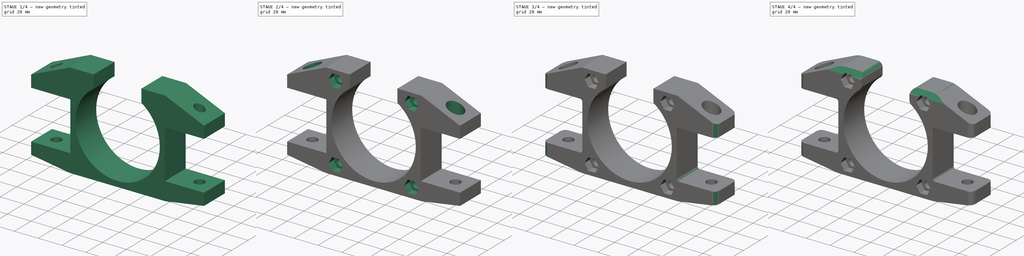
[diagram: build sequence overview — one tinted view per stage of 4, left to right]
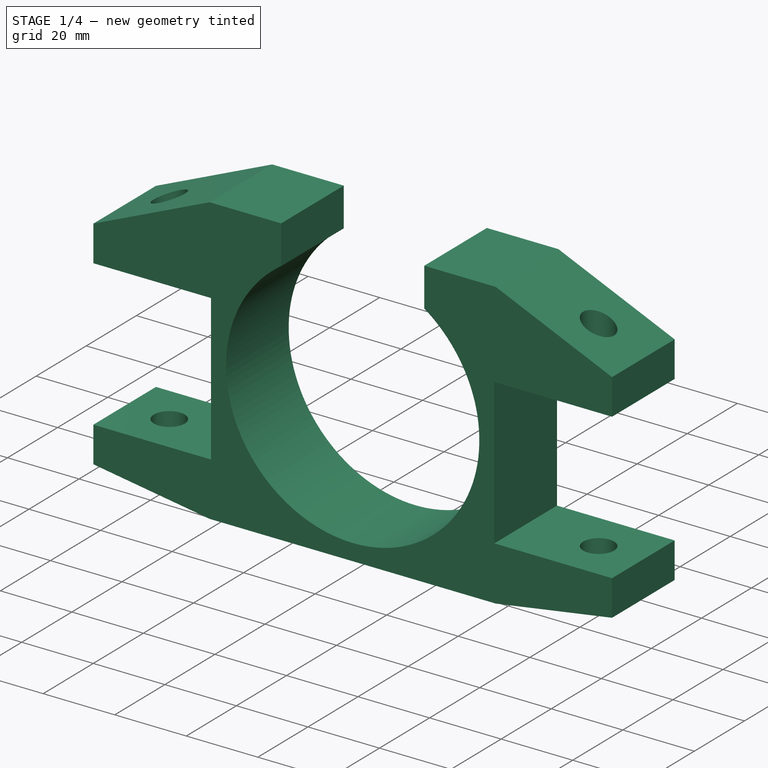
[diagram: stage 1 of 4 — iso view after this stage's code; geometry added in this stage tinted green]
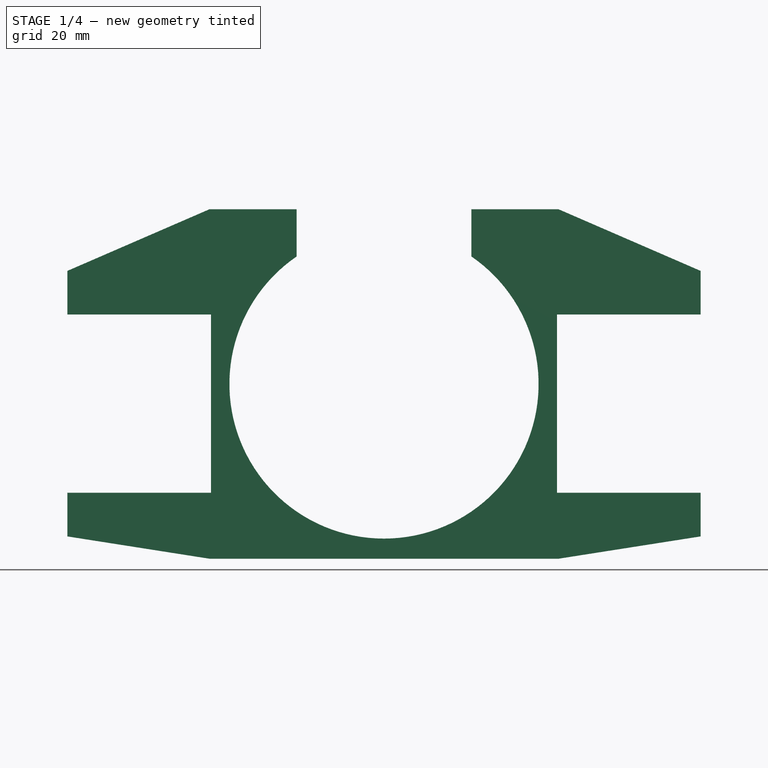
[diagram: stage 1 of 4 — front view after this stage's code; geometry added in this stage tinted green]
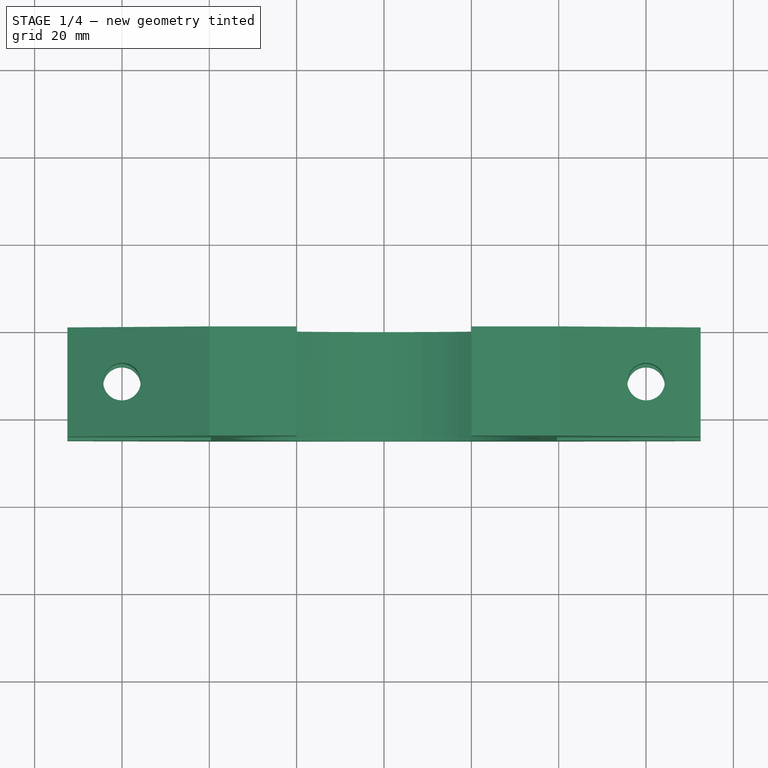
[diagram: stage 1 of 4 — top view after this stage's code; geometry added in this stage tinted green]
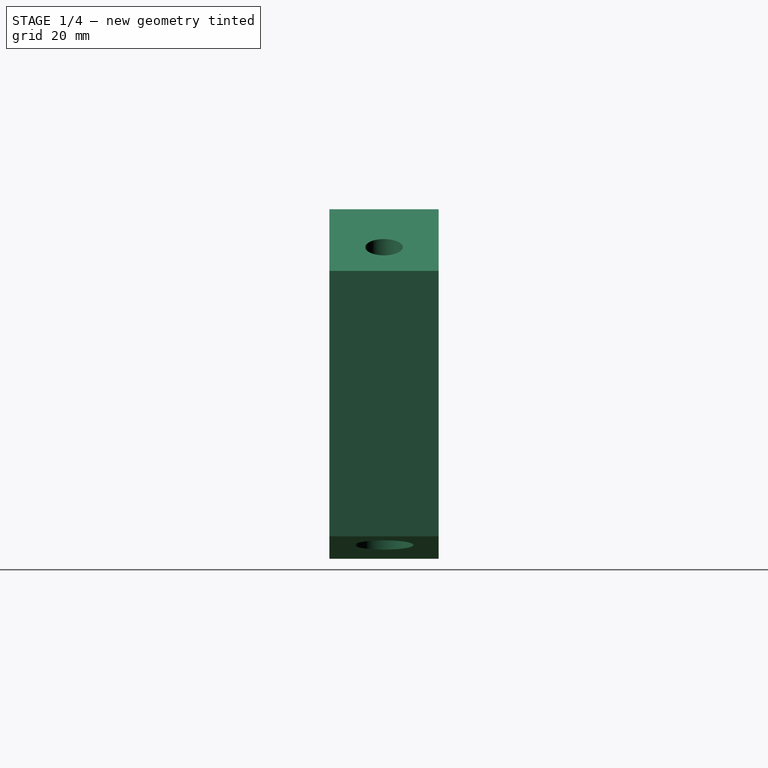
[diagram: stage 1 of 4 — right view after this stage's code; geometry added in this stage tinted green]
FCSTD DOCUMENT  (FreeCAD 1.0R39109 (Git))
Label: surge_motor_mount_side
License: All rights reserved
LicenseURL: https://en.wikipedia.org/wiki/All_rights_reserved
objects: Sketcher::SketchObject×7, PartDesign::Pocket×6, PartDesign::Fillet×4, PartDesign::Pad×1, PartDesign::Body×1
note: 48 computed .brp shape members not serialized (recipe doc carries the construction recipe); baked Part::Feature solids carry a one-line shape summary decoded from their .brp

FEATURE [Sketcher::SketchObject] Sketch
  ArcFitTolerance = 1e-06
  AttachmentSupport = -> [XZ_Plane]
  FullyConstrained = true
  MakeInternals = false
  MapMode = 5
  Placement = pos=(0,0,0) rot=(1,0,0;1.5708rad)
  sketch-geometry (48):
    g0: LineSegment [constr] StartX=-80 StartY=20 StartZ=0 EndX=-80 EndY=-20 EndZ=0
    g1: LineSegment [constr] StartX=-80 StartY=-20 StartZ=0 EndX=-40 EndY=-20 EndZ=0
    g2: LineSegment [constr] StartX=-40 StartY=-20 StartZ=0 EndX=-40 EndY=20 EndZ=0
    g3: LineSegment [constr] StartX=-40 StartY=20 StartZ=0 EndX=-80 EndY=20 EndZ=0
    g4: LineSegment [constr] StartX=40 StartY=20 StartZ=0 EndX=40 EndY=-20 EndZ=0
    g5: LineSegment [constr] StartX=40 StartY=-20 StartZ=0 EndX=80 EndY=-20 EndZ=0
    g6: LineSegment [constr] StartX=80 StartY=-20 StartZ=0 EndX=80 EndY=20 EndZ=0
    g7: LineSegment [constr] StartX=80 StartY=20 StartZ=0 EndX=40 EndY=20 EndZ=0
    g8: LineSegment [constr] StartX=-40 StartY=-20 StartZ=0 EndX=0 EndY=0 EndZ=0
    g9: LineSegment [constr] StartX=0 StartY=0 StartZ=0 EndX=40 EndY=-20 EndZ=0
    g10: LineSegment [constr] StartX=-40 StartY=44.5 StartZ=0 EndX=-40 EndY=-35.5 EndZ=0
    g11: LineSegment [constr] StartX=-40 StartY=-35.5 StartZ=0 EndX=40 EndY=-35.5 EndZ=0
    g12: LineSegment [constr] StartX=40 StartY=-35.5 StartZ=0 EndX=40 EndY=44.5 EndZ=0
    g13: LineSegment [constr] StartX=40 StartY=44.5 StartZ=0 EndX=-40 EndY=44.5 EndZ=0
    g14: ArcOfCircle [constr] CenterX=-33 CenterY=37.5 CenterZ=0 NormalX=0 NormalY=0 NormalZ=1 AngleXU=0 Radius=7 StartAngle=1.5708 EndAngle=3.14159
    g15: ArcOfCircle [constr] CenterX=33 CenterY=37.5 CenterZ=0 NormalX=0 NormalY=0 NormalZ=1 AngleXU=0 Radius=7 StartAngle=0 EndAngle=1.5708
    g16: ArcOfCircle [constr] CenterX=33 CenterY=-28.5 CenterZ=0 NormalX=0 NormalY=0 NormalZ=1 AngleXU=0 Radius=7 StartAngle=4.71239 EndAngle=6.28319
    g17: ArcOfCircle [constr] CenterX=-33 CenterY=-28.5 CenterZ=0 NormalX=0 NormalY=0 NormalZ=1 AngleXU=0 Radius=7 StartAngle=3.14159 EndAngle=4.71239
    g18: Circle [constr] CenterX=-31.75 CenterY=36.25 CenterZ=0 NormalX=0 NormalY=0 NormalZ=1 AngleXU=0 Radius=3
    g19: Circle [constr] CenterX=31.75 CenterY=36.25 CenterZ=0 NormalX=0 NormalY=0 NormalZ=1 AngleXU=0 Radius=3
    g20: Circle [constr] CenterX=31.75 CenterY=-27.25 CenterZ=0 NormalX=0 NormalY=0 NormalZ=1 AngleXU=0 Radius=3
    g21: Circle [constr] CenterX=-31.75 CenterY=-27.25 CenterZ=0 NormalX=0 NormalY=0 NormalZ=1 AngleXU=0 Radius=3
    g22: LineSegment [constr] StartX=-40 StartY=-35.5 StartZ=0 EndX=-31.75 EndY=-27.25 EndZ=0
    g23: LineSegment [constr] StartX=31.75 StartY=-27.25 StartZ=0 EndX=40 EndY=-35.5 EndZ=0
    g24: LineSegment [constr] StartX=-40 StartY=44.5 StartZ=0 EndX=40 EndY=-35.5 EndZ=0
    g25: LineSegment [constr] StartX=-40 StartY=-35.5 StartZ=0 EndX=40 EndY=44.5 EndZ=0
    g26: Circle [constr] CenterX=-1.1e-15 CenterY=4.5 CenterZ=0 NormalX=0 NormalY=0 NormalZ=1 AngleXU=0 Radius=35
    g27: LineSegment StartX=-72.5 StartY=20.4 StartZ=0 EndX=-72.5 EndY=30.4 EndZ=0
    g28: LineSegment StartX=-72.5 StartY=30.4 StartZ=0 EndX=-40 EndY=44.5 EndZ=0
    g29: LineSegment StartX=40 StartY=44.5 StartZ=0 EndX=72.5 EndY=30.4 EndZ=0
    g30: LineSegment StartX=72.5 StartY=30.4 StartZ=0 EndX=72.5 EndY=20.4 EndZ=0
    g31: LineSegment StartX=72.5 StartY=20.4 StartZ=0 EndX=39.6 EndY=20.4 EndZ=0
    g32: LineSegment StartX=39.6 StartY=20.4 StartZ=0 EndX=39.6 EndY=-20.4 EndZ=0
    g33: LineSegment StartX=39.6 StartY=-20.4 StartZ=0 EndX=72.5 EndY=-20.4 EndZ=0
    g34: LineSegment StartX=72.5 StartY=-20.4 StartZ=0 EndX=72.5 EndY=-30.4 EndZ=0
    g35: LineSegment StartX=72.5 StartY=-30.4 StartZ=0 EndX=40 EndY=-35.5 EndZ=0
    g36: LineSegment StartX=40 StartY=-35.5 StartZ=0 EndX=-40 EndY=-35.5 EndZ=0
    g37: LineSegment StartX=-40 StartY=-35.5 StartZ=0 EndX=-72.5 EndY=-30.4 EndZ=0
    g38: LineSegment StartX=-72.5 StartY=-30.4 StartZ=0 EndX=-72.5 EndY=-20.4 EndZ=0
    g39: LineSegment StartX=-72.5 StartY=-20.4 StartZ=0 EndX=-39.6 EndY=-20.4 EndZ=0
    g40: LineSegment StartX=-39.6 StartY=-20.4 StartZ=0 EndX=-39.6 EndY=20.4 EndZ=0
    g41: LineSegment StartX=-39.6 StartY=20.4 StartZ=0 EndX=-72.5 EndY=20.4 EndZ=0
    g42: Circle [constr] CenterX=-1.1e-15 CenterY=4.5 CenterZ=0 NormalX=0 NormalY=0 NormalZ=1 AngleXU=0 Radius=35.4
    g43: ArcOfCircle CenterX=-1.1e-15 CenterY=4.5 CenterZ=0 NormalX=0 NormalY=0 NormalZ=1 AngleXU=0 Radius=35.4 StartAngle=2.1712 EndAngle=7.25358
    g44: LineSegment StartX=-40 StartY=44.5 StartZ=0 EndX=-20 EndY=44.5 EndZ=0
    g45: LineSegment StartX=-20 StartY=44.5 StartZ=0 EndX=-20 EndY=33.7089 EndZ=0
    g46: LineSegment StartX=40 StartY=44.5 StartZ=0 EndX=20 EndY=44.5 EndZ=0
    g47: LineSegment StartX=20 StartY=44.5 StartZ=0 EndX=20 EndY=33.7089 EndZ=0
  constraints (132):
    c: Coincident(g0,g1)
    c: Coincident(g1,g2)
    c: Coincident(g2,g3)
    c: Coincident(g3,g0)
    c: Vertical(g0)
    c: Vertical(g2)
    c: Horizontal(g1)
    c: Horizontal(g3)
    c: Coincident(g4,g5)
    c: Coincident(g5,g6)
    c: Coincident(g6,g7)
    c: Coincident(g7,g4)
    c: Vertical(g4)
    c: Vertical(g6)
    c: Horizontal(g5)
    c: Horizontal(g7)
    c: Equal(g3,g2)
    c: Equal(g2,g4)
    c: Equal(g4,g7)
    c: DistanceY(g0,g0) = 40
    c: DistanceX(g2,g4) = 80
    c: DistanceY(g2,g4) = 0
    c: Coincident(g8,g1)
    c: Coincident(g8,g-1)
    c: Coincident(g9,g8)
    c: Coincident(g9,g4)
    c: Equal(g9,g8)
    c: Coincident(g10,g11)
    c: Coincident(g11,g12)
    c: Coincident(g12,g13)
    c: Coincident(g13,g10)
    c: Vertical(g10)
    c: Vertical(g12)
    c: Horizontal(g11)
    c: Horizontal(g13)
    c: PointOnObject(g2,g10)
    c: PointOnObject(g4,g12)
    c: Equal(g13,g10)
    c: Equal(g16,g17)
    c: Equal(g17,g14)
    c: Equal(g14,g15)
    c: Diameter(g14) = 14
    c: Tangent(g14,g13) = -1.5708
    c: Tangent(g14,g10) = -1.5708
    c: Tangent(g15,g12) = -1.5708
    c: Tangent(g15,g13) = -1.5708
    c: Tangent(g17,g10) = -1.5708
    c: Tangent(g17,g11) = -1.5708
    c: Tangent(g16,g11) = -1.5708
    c: Tangent(g16,g12) = -1.5708
    c: Equal(g21,g20)
    c: Equal(g20,g19)
    c: Equal(g19,g18)
    c: Diameter(g18) = 6
    c: DistanceX(g18,g19) = 63.5
    c: DistanceY(g21,g18) = 63.5
    c: DistanceY(g21,g20) = 0
    c: DistanceY(g19,g18) = 0
    c: DistanceX(g18,g21) = 0
    c: DistanceX(g20,g19) = 0
    c: Coincident(g22,g10)
    c: Coincident(g22,g21)
    c: PointOnObject(g17,g22)
    c: Coincident(g23,g20)
    c: Coincident(g23,g11)
    c: PointOnObject(g16,g23)
    c: DistanceY(g2,g10) = 24.5
    c: DistanceY(g2) = 20
    c: Coincident(g24,g10)
    c: Coincident(g24,g11)
    c: Coincident(g25,g10)
    c: Coincident(g25,g12)
    c: Symmetric(g25,g25,g26)
    c: Diameter(g26) = 70
    c: Vertical(g27)
    c: Coincident(g27,g28)
    c: Coincident(g28,g10)
    c: Coincident(g29,g30)
    c: Vertical(g30)
    c: Coincident(g30,g31)
    c: Horizontal(g31)
    c: Coincident(g31,g32)
    c: Vertical(g32)
    c: Coincident(g32,g33)
    c: Horizontal(g33)
    c: Coincident(g33,g34)
    c: Vertical(g34)
    c: Coincident(g34,g35)
    c: Coincident(g35,g11)
    c: Coincident(g35,g36)
    c: Coincident(g36,g10)
    c: Coincident(g10,g37)
    c: Coincident(g37,g38)
    c: Vertical(g38)
    c: Coincident(g38,g39)
    c: Horizontal(g39)
    c: Coincident(g39,g40)
    c: Vertical(g40)
    c: Coincident(g40,g41)
    c: Coincident(g41,g27)
    c: Horizontal(g41)
    c: DistanceX(g0,g27) = 7.5
    c: DistanceY(g0,g27) = 0.4
    c: DistanceX(g2,g40) = 0.4
    c: DistanceY(g39,g1) = 0.4
    c: Equal(g39,g41)
    c: Equal(g41,g33)
    c: Equal(g33,g31)
    c: DistanceY(g27,g27) = 10
    c: Equal(g27,g38)
    c: Equal(g38,g34)
    c: Equal(g34,g30)
    c: Equal(g32,g40)
    c: Equal(g29,g28)
    c: Equal(g35,g37)
    c: Coincident(g42,g26)
    c: Diameter(g42) = 70.8
    c: Coincident(g43,g26)
    c: PointOnObject(g43,g42)
    c: Coincident(g10,g44)
    c: PointOnObject(g44,g13)
    c: Coincident(g44,g45)
    c: Coincident(g45,g43)
    c: Vertical(g45)
    c: Coincident(g29,g46)
    c: Horizontal(g46)
    c: Coincident(g46,g47)
    c: Coincident(g47,g43)
    c: Vertical(g47)
    c: Equal(g44,g46)
    c: DistanceX(g44,g46) = 40
    c: Coincident(g29,g12)
FEATURE [PartDesign::Pad] Pad
  Direction = (0,-1,2e-16)
  Length = 25
  Length2 = 10
  Placement = pos=(0,0,0) rot=(1,0,0;1.5708rad)
  Profile = -> Sketch
  ReferenceAxis = -> Sketch [N_Axis]
  Refine = true
  Suppressed = false
  Type = 0
FEATURE [Sketcher::SketchObject] Sketch001
  ArcFitTolerance = 1e-06
  AttachmentSupport = -> [Pad]
  FullyConstrained = true
  MakeInternals = false
  MapMode = 5
  Placement = pos=(0,-9e-15,-20.4) rot=(0,0,1;3.14159rad)
  sketch-geometry (14):
    g0: LineSegment [constr] StartX=-72.5 StartY=0 StartZ=0 EndX=-47.5 EndY=0 EndZ=0
    g1: LineSegment [constr] StartX=-47.5 StartY=0 StartZ=0 EndX=-47.5 EndY=25 EndZ=0
    g2: LineSegment [constr] StartX=-47.5 StartY=25 StartZ=0 EndX=-72.5 EndY=25 EndZ=0
    g3: LineSegment [constr] StartX=-72.5 StartY=25 StartZ=0 EndX=-72.5 EndY=0 EndZ=0
    g4: LineSegment [constr] StartX=72.5 StartY=0 StartZ=0 EndX=72.5 EndY=25 EndZ=0
    g5: LineSegment [constr] StartX=72.5 StartY=25 StartZ=0 EndX=47.5 EndY=25 EndZ=0
    g6: LineSegment [constr] StartX=47.5 StartY=25 StartZ=0 EndX=47.5 EndY=0 EndZ=0
    g7: LineSegment [constr] StartX=47.5 StartY=0 StartZ=0 EndX=72.5 EndY=0 EndZ=0
    g8: LineSegment [constr] StartX=-72.5 StartY=25 StartZ=0 EndX=-47.5 EndY=0 EndZ=0
    g9: LineSegment [constr] StartX=-72.5 StartY=0 StartZ=0 EndX=-47.5 EndY=25 EndZ=0
    g10: LineSegment [constr] StartX=47.5 StartY=25 StartZ=0 EndX=72.5 EndY=0 EndZ=0
    g11: LineSegment [constr] StartX=47.5 StartY=0 StartZ=0 EndX=72.5 EndY=25 EndZ=0
    g12: Circle CenterX=-60 CenterY=12.5 CenterZ=0 NormalX=0 NormalY=0 NormalZ=1 AngleXU=0 Radius=4.3
    g13: Circle CenterX=60 CenterY=12.5 CenterZ=0 NormalX=0 NormalY=0 NormalZ=1 AngleXU=0 Radius=4.3
  constraints (36):
    c: Coincident(g0,g1)
    c: Coincident(g1,g2)
    c: Coincident(g2,g3)
    c: Coincident(g3,g0)
    c: Horizontal(g0)
    c: Horizontal(g2)
    c: Vertical(g1)
    c: Vertical(g3)
    c: Distance(g1,g3) = 25
    c: Distance(g0,g2) = 25
    c: PointOnObject(g0,g-1)
    c: DistanceX(g0) = -47.5
    c: Coincident(g4,g5)
    c: Coincident(g5,g6)
    c: Coincident(g6,g7)
    c: Coincident(g7,g4)
    c: Vertical(g4)
    c: Vertical(g6)
    c: Horizontal(g5)
    c: Horizontal(g7)
    c: PointOnObject(g4,g-1)
    c: Equal(g6,g5)
    c: Equal(g5,g1)
    c: DistanceX(g6) = 47.5
    c: Coincident(g8,g2)
    c: Coincident(g8,g0)
    c: Coincident(g9,g0)
    c: Coincident(g9,g1)
    c: Coincident(g10,g5)
    c: Coincident(g10,g4)
    c: Coincident(g11,g6)
    c: Coincident(g11,g4)
    c: Diameter(g12) = 8.6
    c: Symmetric(g8,g8,g12)
    c: Symmetric(g11,g11,g13)
    c: Equal(g13,g12)
FEATURE [PartDesign::Pocket] Pocket
  BaseFeature = -> Pad
  Direction = (0,0,-1)
  Length = 100
  Length2 = 100
  Placement = pos=(0,0,0) rot=(1,0,0;1.5708rad)
  Profile = -> Sketch001
  ReferenceAxis = -> Sketch001 [N_Axis]
  Refine = true
  Suppressed = false
  Type = 4
FEATURE [Sketcher::SketchObject] Sketch002
  ArcFitTolerance = 1e-06
  AttachmentOffset = pos=(0,0,-5) rot=(0,0,1;0rad)
  AttachmentSupport = -> [Pocket]
  FullyConstrained = true
  MakeInternals = false
  MapMode = 5
  Placement = pos=(0,-9e-15,-25.4) rot=(0,0,1;3.14159rad)
  expr: Constraints[11] = Sketch001.Constraints[11]
  expr: Constraints[23] = Sketch001.Constraints[23]
  expr: Constraints[32] = Sketch001.Constraints[32]
  expr: Constraints[8] = Sketch001.Constraints[8]
  expr: Constraints[9] = Sketch001.Constraints[9]
  sketch-geometry (16):
    g0: LineSegment [constr] StartX=-72.5 StartY=0 StartZ=0 EndX=-47.5 EndY=0 EndZ=0
    g1: LineSegment [constr] StartX=-47.5 StartY=0 StartZ=0 EndX=-47.5 EndY=25 EndZ=0
    g2: LineSegment [constr] StartX=-47.5 StartY=25 StartZ=0 EndX=-72.5 EndY=25 EndZ=0
    g3: LineSegment [constr] StartX=-72.5 StartY=25 StartZ=0 EndX=-72.5 EndY=0 EndZ=0
    g4: LineSegment [constr] StartX=72.5 StartY=0 StartZ=0 EndX=72.5 EndY=25 EndZ=0
    g5: LineSegment [constr] StartX=72.5 StartY=25 StartZ=0 EndX=47.5 EndY=25 EndZ=0
    g6: LineSegment [constr] StartX=47.5 StartY=25 StartZ=0 EndX=47.5 EndY=0 EndZ=0
    g7: LineSegment [constr] StartX=47.5 StartY=0 StartZ=0 EndX=72.5 EndY=0 EndZ=0
    g8: LineSegment [constr] StartX=-72.5 StartY=25 StartZ=0 EndX=-47.5 EndY=0 EndZ=0
    g9: LineSegment [constr] StartX=-72.5 StartY=0 StartZ=0 EndX=-47.5 EndY=25 EndZ=0
    g10: LineSegment [constr] StartX=47.5 StartY=25 StartZ=0 EndX=72.5 EndY=0 EndZ=0
    g11: LineSegment [constr] StartX=47.5 StartY=0 StartZ=0 EndX=72.5 EndY=25 EndZ=0
    g12: Circle [constr] CenterX=-60 CenterY=12.5 CenterZ=0 NormalX=0 NormalY=0 NormalZ=1 AngleXU=0 Radius=4.3
    g13: Circle [constr] CenterX=60 CenterY=12.5 CenterZ=0 NormalX=0 NormalY=0 NormalZ=1 AngleXU=0 Radius=4.3
    g14: Circle CenterX=-60 CenterY=12.5 CenterZ=0 NormalX=0 NormalY=0 NormalZ=1 AngleXU=0 Radius=6.75
    g15: Circle CenterX=60 CenterY=12.5 CenterZ=0 NormalX=0 NormalY=0 NormalZ=1 AngleXU=0 Radius=6.75
  constraints (40):
    c: Coincident(g0,g1)
    c: Coincident(g1,g2)
    c: Coincident(g2,g3)
    c: Coincident(g3,g0)
    c: Horizontal(g0)
    c: Horizontal(g2)
    c: Vertical(g1)
    c: Vertical(g3)
    c: Distance(g1,g3) = 25
    c: Distance(g0,g2) = 25
    c: PointOnObject(g0,g-1)
    c: DistanceX(g0) = -47.5
    c: Coincident(g4,g5)
    c: Coincident(g5,g6)
    c: Coincident(g6,g7)
    c: Coincident(g7,g4)
    c: Vertical(g4)
    c: Vertical(g6)
    c: Horizontal(g5)
    c: Horizontal(g7)
    c: PointOnObject(g4,g-1)
    c: Equal(g6,g5)
    c: Equal(g5,g1)
    c: DistanceX(g6) = 47.5
    c: Coincident(g8,g2)
    c: Coincident(g8,g0)
    c: Coincident(g9,g0)
    c: Coincident(g9,g1)
    c: Coincident(g10,g5)
    c: Coincident(g10,g4)
    c: Coincident(g11,g6)
    c: Coincident(g11,g4)
    c: Diameter(g12) = 8.6
    c: Symmetric(g8,g8,g12)
    c: Symmetric(g11,g11,g13)
    c: Equal(g13,g12)
    c: Diameter(g14) = 13.5
    c: Coincident(g14,g12)
    c: Coincident(g15,g13)
    c: Equal(g15,g14)
FEATURE [PartDesign::Pocket] Pocket001
  BaseFeature = -> Pocket
  Direction = (0,0,-1)
  Length = 5
  Length2 = 5
  Placement = pos=(0,0,0) rot=(1,0,0;1.5708rad)
  Profile = -> Sketch002
  ReferenceAxis = -> Sketch002 [N_Axis]
  Refine = true
  Suppressed = false
  Type = 1
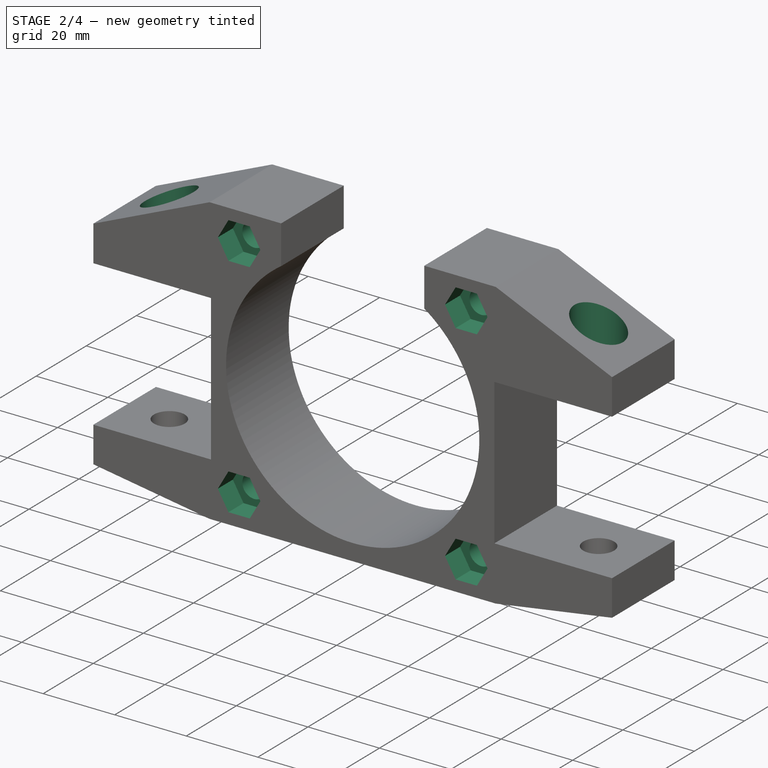
[diagram: stage 2 of 4 — iso view after this stage's code; geometry added in this stage tinted green]
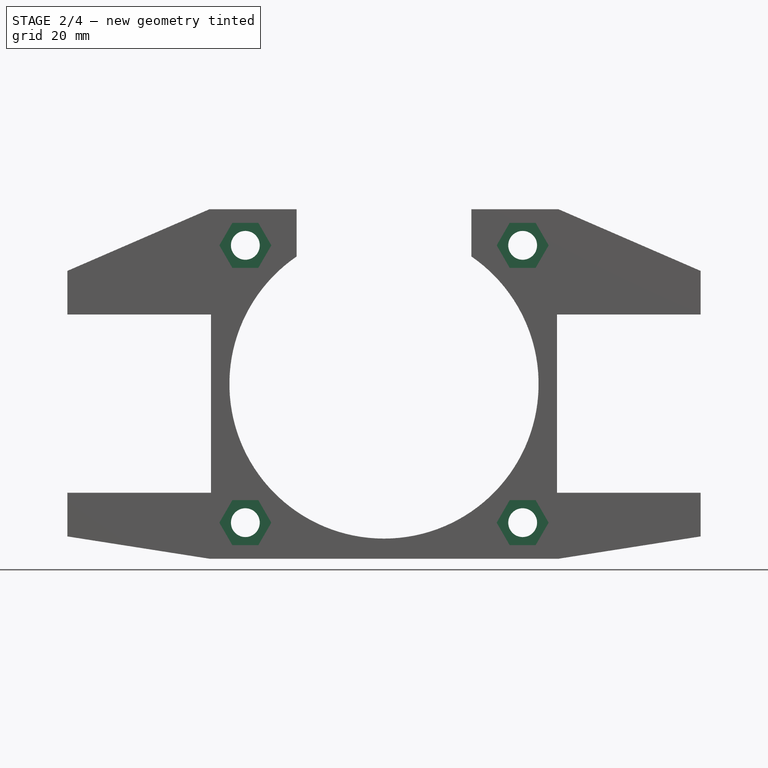
[diagram: stage 2 of 4 — front view after this stage's code; geometry added in this stage tinted green]
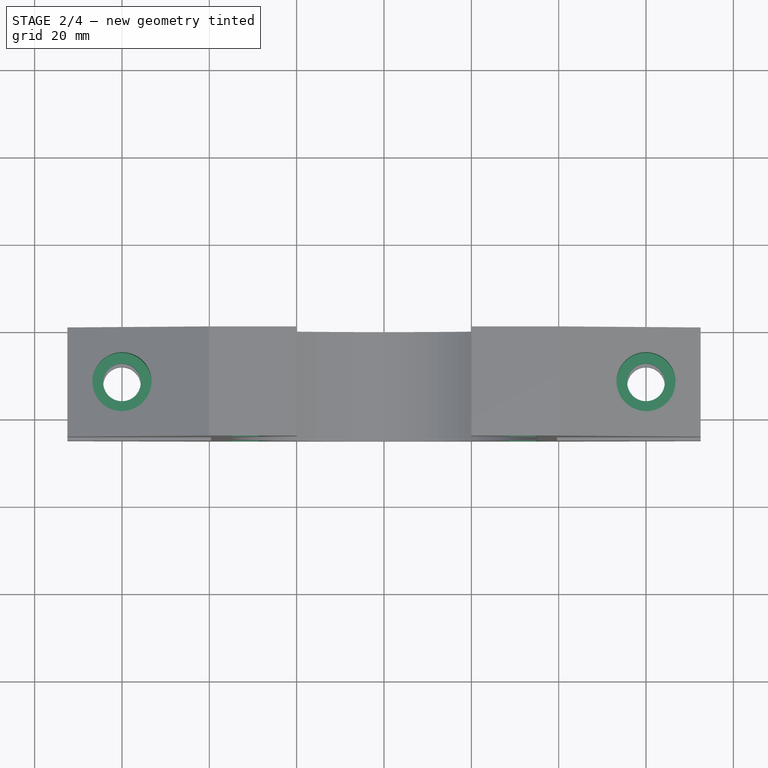
[diagram: stage 2 of 4 — top view after this stage's code; geometry added in this stage tinted green]
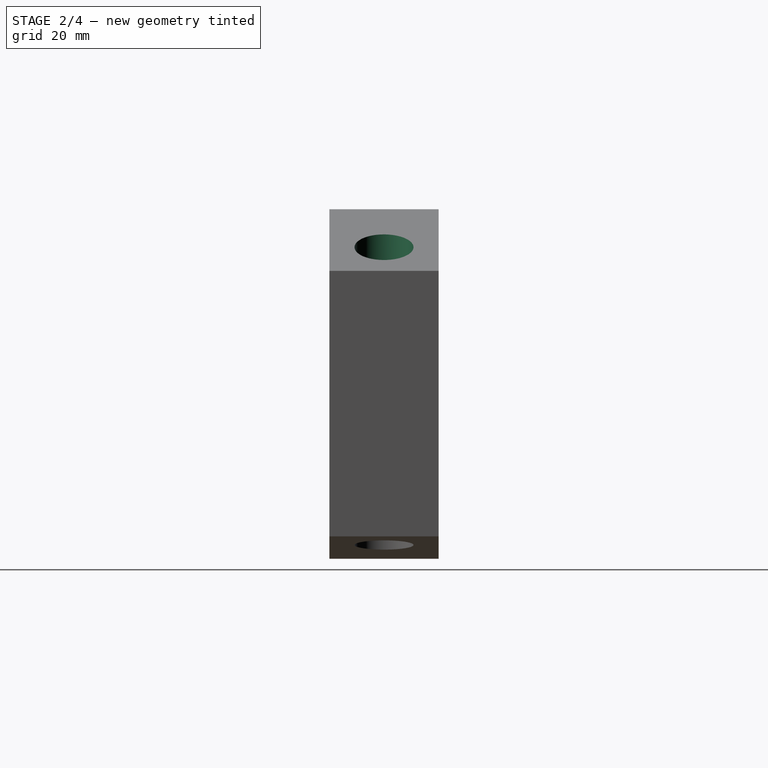
[diagram: stage 2 of 4 — right view after this stage's code; geometry added in this stage tinted green]
FEATURE [Sketcher::SketchObject] Sketch003
  ArcFitTolerance = 1e-06
  AttachmentOffset = pos=(0,0,45.8) rot=(0,0,1;0rad)
  AttachmentSupport = -> [Pocket001]
  FullyConstrained = true
  MakeInternals = false
  MapMode = 5
  Placement = pos=(0,-9e-15,25.4) rot=(0,0,1;3.14159rad)
  expr: Constraints[11] = Sketch002.Constraints[11]
  expr: Constraints[23] = Sketch002.Constraints[23]
  expr: Constraints[32] = Sketch002.Constraints[32]
  expr: Constraints[36] = Sketch002.Constraints[36]
  expr: Constraints[8] = Sketch002.Constraints[8]
  expr: Constraints[9] = Sketch002.Constraints[9]
  sketch-geometry (16):
    g0: LineSegment [constr] StartX=-72.5 StartY=0 StartZ=0 EndX=-47.5 EndY=0 EndZ=0
    g1: LineSegment [constr] StartX=-47.5 StartY=0 StartZ=0 EndX=-47.5 EndY=25 EndZ=0
    g2: LineSegment [constr] StartX=-47.5 StartY=25 StartZ=0 EndX=-72.5 EndY=25 EndZ=0
    g3: LineSegment [constr] StartX=-72.5 StartY=25 StartZ=0 EndX=-72.5 EndY=0 EndZ=0
    g4: LineSegment [constr] StartX=72.5 StartY=0 StartZ=0 EndX=72.5 EndY=25 EndZ=0
    g5: LineSegment [constr] StartX=72.5 StartY=25 StartZ=0 EndX=47.5 EndY=25 EndZ=0
    g6: LineSegment [constr] StartX=47.5 StartY=25 StartZ=0 EndX=47.5 EndY=0 EndZ=0
    g7: LineSegment [constr] StartX=47.5 StartY=0 StartZ=0 EndX=72.5 EndY=0 EndZ=0
    g8: LineSegment [constr] StartX=-72.5 StartY=25 StartZ=0 EndX=-47.5 EndY=0 EndZ=0
    g9: LineSegment [constr] StartX=-72.5 StartY=0 StartZ=0 EndX=-47.5 EndY=25 EndZ=0
    g10: LineSegment [constr] StartX=47.5 StartY=25 StartZ=0 EndX=72.5 EndY=0 EndZ=0
    g11: LineSegment [constr] StartX=47.5 StartY=0 StartZ=0 EndX=72.5 EndY=25 EndZ=0
    g12: Circle [constr] CenterX=-60 CenterY=12.5 CenterZ=0 NormalX=0 NormalY=0 NormalZ=1 AngleXU=0 Radius=4.3
    g13: Circle [constr] CenterX=60 CenterY=12.5 CenterZ=0 NormalX=0 NormalY=0 NormalZ=1 AngleXU=0 Radius=4.3
    g14: Circle CenterX=-60 CenterY=12.5 CenterZ=0 NormalX=0 NormalY=0 NormalZ=1 AngleXU=0 Radius=6.75
    g15: Circle CenterX=60 CenterY=12.5 CenterZ=0 NormalX=0 NormalY=0 NormalZ=1 AngleXU=0 Radius=6.75
  constraints (40):
    c: Coincident(g0,g1)
    c: Coincident(g1,g2)
    c: Coincident(g2,g3)
    c: Coincident(g3,g0)
    c: Horizontal(g0)
    c: Horizontal(g2)
    c: Vertical(g1)
    c: Vertical(g3)
    c: Distance(g1,g3) = 25
    c: Distance(g0,g2) = 25
    c: PointOnObject(g0,g-1)
    c: DistanceX(g0) = -47.5
    c: Coincident(g4,g5)
    c: Coincident(g5,g6)
    c: Coincident(g6,g7)
    c: Coincident(g7,g4)
    c: Vertical(g4)
    c: Vertical(g6)
    c: Horizontal(g5)
    c: Horizontal(g7)
    c: PointOnObject(g4,g-1)
    c: Equal(g6,g5)
    c: Equal(g5,g1)
    c: DistanceX(g6) = 47.5
    c: Coincident(g8,g2)
    c: Coincident(g8,g0)
    c: Coincident(g9,g0)
    c: Coincident(g9,g1)
    c: Coincident(g10,g5)
    c: Coincident(g10,g4)
    c: Coincident(g11,g6)
    c: Coincident(g11,g4)
    c: Diameter(g12) = 8.6
    c: Symmetric(g8,g8,g12)
    c: Symmetric(g11,g11,g13)
    c: Equal(g13,g12)
    c: Diameter(g14) = 13.5
    c: Coincident(g14,g12)
    c: Coincident(g15,g13)
    c: Equal(g15,g14)
FEATURE [PartDesign::Pocket] Pocket002
  BaseFeature = -> Pocket001
  Direction = (0,0,-1)
  Length = 5
  Length2 = 5
  Placement = pos=(0,0,0) rot=(1,0,0;1.5708rad)
  Profile = -> Sketch003
  ReferenceAxis = -> Sketch003 [N_Axis]
  Refine = true
  Reversed = true
  Suppressed = false
  Type = 1
FEATURE [Sketcher::SketchObject] Sketch004
  ArcFitTolerance = 1e-06
  AttachmentSupport = -> [Pocket002]
  FullyConstrained = true
  MakeInternals = false
  MapMode = 5
  Placement = pos=(0,-25,0) rot=(1,0,0;1.5708rad)
  expr: Constraints[104] = Sketch.Constraints[101]
  expr: Constraints[105] = Sketch.Constraints[102]
  expr: Constraints[106] = Sketch.Constraints[103]
  expr: Constraints[107] = Sketch.Constraints[104]
  expr: Constraints[111] = Sketch.Constraints[108]
  expr: Constraints[119] = Sketch.Constraints[116]
  expr: Constraints[19] = Sketch.Constraints[19]
  expr: Constraints[20] = Sketch.Constraints[20]
  expr: Constraints[21] = Sketch.Constraints[21]
  expr: Constraints[41] = Sketch.Constraints[41]
  expr: Constraints[53] = Sketch.Constraints[53]
  expr: Constraints[54] = Sketch.Constraints[54]
  expr: Constraints[55] = Sketch.Constraints[55]
  expr: Constraints[56] = Sketch.Constraints[56]
  expr: Constraints[57] = Sketch.Constraints[57]
  expr: Constraints[58] = Sketch.Constraints[58]
  expr: Constraints[59] = Sketch.Constraints[59]
  expr: Constraints[66] = Sketch.Constraints[66]
  expr: Constraints[67] = Sketch.Constraints[67]
  expr: Constraints[73] = Sketch.Constraints[73]
  sketch-geometry (48):
    g0: LineSegment [constr] StartX=-80 StartY=20 StartZ=0 EndX=-80 EndY=-20 EndZ=0
    g1: LineSegment [constr] StartX=-80 StartY=-20 StartZ=0 EndX=-40 EndY=-20 EndZ=0
    g2: LineSegment [constr] StartX=-40 StartY=-20 StartZ=0 EndX=-40 EndY=20 EndZ=0
    g3: LineSegment [constr] StartX=-40 StartY=20 StartZ=0 EndX=-80 EndY=20 EndZ=0
    g4: LineSegment [constr] StartX=40 StartY=20 StartZ=0 EndX=40 EndY=-20 EndZ=0
    g5: LineSegment [constr] StartX=40 StartY=-20 StartZ=0 EndX=80 EndY=-20 EndZ=0
    g6: LineSegment [constr] StartX=80 StartY=-20 StartZ=0 EndX=80 EndY=20 EndZ=0
    g7: LineSegment [constr] StartX=80 StartY=20 StartZ=0 EndX=40 EndY=20 EndZ=0
    g8: LineSegment [constr] StartX=-40 StartY=-20 StartZ=0 EndX=0 EndY=0 EndZ=0
    g9: LineSegment [constr] StartX=0 StartY=0 StartZ=0 EndX=40 EndY=-20 EndZ=0
    g10: LineSegment [constr] StartX=-40 StartY=44.5 StartZ=0 EndX=-40 EndY=-35.5 EndZ=0
    g11: LineSegment [constr] StartX=-40 StartY=-35.5 StartZ=0 EndX=40 EndY=-35.5 EndZ=0
    g12: LineSegment [constr] StartX=40 StartY=-35.5 StartZ=0 EndX=40 EndY=44.5 EndZ=0
    g13: LineSegment [constr] StartX=40 StartY=44.5 StartZ=0 EndX=-40 EndY=44.5 EndZ=0
    g14: ArcOfCircle [constr] CenterX=-33 CenterY=37.5 CenterZ=0 NormalX=0 NormalY=0 NormalZ=1 AngleXU=0 Radius=7 StartAngle=1.5708 EndAngle=3.14159
    g15: ArcOfCircle [constr] CenterX=33 CenterY=37.5 CenterZ=0 NormalX=0 NormalY=0 NormalZ=1 AngleXU=0 Radius=7 StartAngle=4e-16 EndAngle=1.5708
    g16: ArcOfCircle [constr] CenterX=33 CenterY=-28.5 CenterZ=0 NormalX=0 NormalY=0 NormalZ=1 AngleXU=0 Radius=7 StartAngle=4.71239 EndAngle=6.28319
    g17: ArcOfCircle [constr] CenterX=-33 CenterY=-28.5 CenterZ=0 NormalX=0 NormalY=0 NormalZ=1 AngleXU=0 Radius=7 StartAngle=3.14159 EndAngle=4.71239
    g18: Circle [constr] CenterX=-31.75 CenterY=36.25 CenterZ=0 NormalX=0 NormalY=0 NormalZ=1 AngleXU=0 Radius=3
    g19: Circle [constr] CenterX=31.75 CenterY=36.25 CenterZ=0 NormalX=0 NormalY=0 NormalZ=1 AngleXU=0 Radius=3
    g20: Circle [constr] CenterX=31.75 CenterY=-27.25 CenterZ=0 NormalX=0 NormalY=0 NormalZ=1 AngleXU=0 Radius=3
    g21: Circle [constr] CenterX=-31.75 CenterY=-27.25 CenterZ=0 NormalX=0 NormalY=0 NormalZ=1 AngleXU=0 Radius=3
    g22: LineSegment [constr] StartX=-40 StartY=-35.5 StartZ=0 EndX=-31.75 EndY=-27.25 EndZ=0
    g23: LineSegment [constr] StartX=31.75 StartY=-27.25 StartZ=0 EndX=40 EndY=-35.5 EndZ=0
    g24: LineSegment [constr] StartX=-40 StartY=44.5 StartZ=0 EndX=40 EndY=-35.5 EndZ=0
    g25: LineSegment [constr] StartX=-40 StartY=-35.5 StartZ=0 EndX=40 EndY=44.5 EndZ=0
    g26: Circle [constr] CenterX=8e-16 CenterY=4.5 CenterZ=0 NormalX=0 NormalY=0 NormalZ=1 AngleXU=0 Radius=35
    g27: LineSegment [constr] StartX=-72.5 StartY=20.4 StartZ=0 EndX=-72.5 EndY=30.4 EndZ=0
    g28: LineSegment [constr] StartX=-72.5 StartY=30.4 StartZ=0 EndX=-40 EndY=44.5 EndZ=0
    g29: LineSegment [constr] StartX=-40 StartY=44.5 StartZ=0 EndX=40 EndY=44.5 EndZ=0
    g30: LineSegment [constr] StartX=40 StartY=44.5 StartZ=0 EndX=72.5 EndY=30.4 EndZ=0
    g31: LineSegment [constr] StartX=72.5 StartY=30.4 StartZ=0 EndX=72.5 EndY=20.4 EndZ=0
    g32: LineSegment [constr] StartX=72.5 StartY=20.4 StartZ=0 EndX=39.6 EndY=20.4 EndZ=0
    g33: LineSegment [constr] StartX=39.6 StartY=20.4 StartZ=0 EndX=39.6 EndY=-20.4 EndZ=0
    g34: LineSegment [constr] StartX=39.6 StartY=-20.4 StartZ=0 EndX=72.5 EndY=-20.4 EndZ=0
    g35: LineSegment [constr] StartX=72.5 StartY=-20.4 StartZ=0 EndX=72.5 EndY=-30.4 EndZ=0
    g36: LineSegment [constr] StartX=72.5 StartY=-30.4 StartZ=0 EndX=40 EndY=-35.5 EndZ=0
    g37: LineSegment [constr] StartX=40 StartY=-35.5 StartZ=0 EndX=-40 EndY=-35.5 EndZ=0
    g38: LineSegment [constr] StartX=-40 StartY=-35.5 StartZ=0 EndX=-72.5 EndY=-30.4 EndZ=0
    g39: LineSegment [constr] StartX=-72.5 StartY=-30.4 StartZ=0 EndX=-72.5 EndY=-20.4 EndZ=0
    g40: LineSegment [constr] StartX=-72.5 StartY=-20.4 StartZ=0 EndX=-39.6 EndY=-20.4 EndZ=0
    g41: LineSegment [constr] StartX=-39.6 StartY=-20.4 StartZ=0 EndX=-39.6 EndY=20.4 EndZ=0
    g42: LineSegment [constr] StartX=-39.6 StartY=20.4 StartZ=0 EndX=-72.5 EndY=20.4 EndZ=0
    g43: Circle [constr] CenterX=8e-16 CenterY=4.5 CenterZ=0 NormalX=0 NormalY=0 NormalZ=1 AngleXU=0 Radius=35.4
    g44: Circle CenterX=-31.75 CenterY=36.25 CenterZ=0 NormalX=0 NormalY=0 NormalZ=1 AngleXU=0 Radius=3.3
    g45: Circle CenterX=31.75 CenterY=36.25 CenterZ=0 NormalX=0 NormalY=0 NormalZ=1 AngleXU=0 Radius=3.3
    g46: Circle CenterX=31.75 CenterY=-27.25 CenterZ=0 NormalX=0 NormalY=0 NormalZ=1 AngleXU=0 Radius=3.3
    g47: Circle CenterX=-31.75 CenterY=-27.25 CenterZ=0 NormalX=0 NormalY=0 NormalZ=1 AngleXU=0 Radius=3.3
  constraints (128):
    c: Coincident(g0,g1)
    c: Coincident(g1,g2)
    c: Coincident(g2,g3)
    c: Coincident(g3,g0)
    c: Vertical(g0)
    c: Vertical(g2)
    c: Horizontal(g1)
    c: Horizontal(g3)
    c: Coincident(g4,g5)
    c: Coincident(g5,g6)
    c: Coincident(g6,g7)
    c: Coincident(g7,g4)
    c: Vertical(g4)
    c: Vertical(g6)
    c: Horizontal(g5)
    c: Horizontal(g7)
    c: Equal(g3,g2)
    c: Equal(g2,g4)
    c: Equal(g4,g7)
    c: DistanceY(g0,g0) = 40
    c: DistanceX(g2,g4) = 80
    c: DistanceY(g2,g4) = 0
    c: Coincident(g8,g1)
    c: Coincident(g8,g-1)
    c: Coincident(g9,g8)
    c: Coincident(g9,g4)
    c: Equal(g9,g8)
    c: Coincident(g10,g11)
    c: Coincident(g11,g12)
    c: Coincident(g12,g13)
    c: Coincident(g13,g10)
    c: Vertical(g10)
    c: Vertical(g12)
    c: Horizontal(g11)
    c: Horizontal(g13)
    c: PointOnObject(g2,g10)
    c: PointOnObject(g4,g12)
    c: Equal(g13,g10)
    c: Equal(g16,g17)
    c: Equal(g17,g14)
    c: Equal(g14,g15)
    c: Diameter(g14) = 14
    c: Tangent(g14,g13) = -1.5708
    c: Tangent(g14,g10) = -1.5708
    c: Tangent(g15,g12) = -1.5708
    c: Tangent(g15,g13) = -1.5708
    c: Tangent(g17,g10) = -1.5708
    c: Tangent(g17,g11) = -1.5708
    c: Tangent(g16,g11) = -1.5708
    c: Tangent(g16,g12) = -1.5708
    c: Equal(g21,g20)
    c: Equal(g20,g19)
    c: Equal(g19,g18)
    c: Diameter(g18) = 6
    c: DistanceX(g18,g19) = 63.5
    c: DistanceY(g21,g18) = 63.5
    c: DistanceY(g21,g20) = 0
    c: DistanceY(g19,g18) = 0
    c: DistanceX(g18,g21) = 0
    c: DistanceX(g20,g19) = 0
    c: Coincident(g22,g10)
    c: Coincident(g22,g21)
    c: PointOnObject(g17,g22)
    c: Coincident(g23,g20)
    c: Coincident(g23,g11)
    c: PointOnObject(g16,g23)
    c: DistanceY(g2,g10) = 24.5
    c: DistanceY(g2) = 20
    c: Coincident(g24,g10)
    c: Coincident(g24,g11)
    c: Coincident(g25,g10)
    c: Coincident(g25,g12)
    c: Symmetric(g25,g25,g26)
    c: Diameter(g26) = 70
    c: Vertical(g27)
    c: Coincident(g27,g28)
    c: Coincident(g28,g10)
    c: Coincident(g28,g29)
    c: Coincident(g29,g12)
    c: Coincident(g29,g30)
    c: Coincident(g30,g31)
    c: Vertical(g31)
    c: Coincident(g31,g32)
    c: Horizontal(g32)
    c: Coincident(g32,g33)
    c: Vertical(g33)
    c: Coincident(g33,g34)
    c: Horizontal(g34)
    c: Coincident(g34,g35)
    c: Vertical(g35)
    c: Coincident(g35,g36)
    c: Coincident(g36,g11)
    c: Coincident(g36,g37)
    c: Coincident(g37,g10)
    c: Coincident(g10,g38)
    c: Coincident(g38,g39)
    c: Vertical(g39)
    c: Coincident(g39,g40)
    c: Horizontal(g40)
    c: Coincident(g40,g41)
    c: Vertical(g41)
    c: Coincident(g41,g42)
    c: Coincident(g42,g27)
    c: Horizontal(g42)
    c: DistanceX(g0,g27) = 7.5
    c: DistanceY(g0,g27) = 0.4
    c: DistanceX(g2,g41) = 0.4
    c: DistanceY(g40,g1) = 0.4
    c: Equal(g40,g42)
    c: Equal(g42,g34)
    c: Equal(g34,g32)
    c: DistanceY(g27,g27) = 10
    c: Equal(g27,g39)
    c: Equal(g39,g35)
    c: Equal(g35,g31)
    c: Equal(g33,g41)
    c: Equal(g30,g28)
    c: Equal(g36,g38)
    c: Coincident(g43,g26)
    c: Diameter(g43) = 70.8
    c: Coincident(g44,g18)
    c: Diameter(g44) = 6.6
    c: Coincident(g45,g19)
    c: Coincident(g46,g20)
    c: Coincident(g47,g21)
    c: Equal(g47,g46)
    c: Equal(g46,g45)
    c: Equal(g45,g44)
FEATURE [PartDesign::Pocket] Pocket003
  BaseFeature = -> Pocket002
  Direction = (0,1,-2e-16)
  Length = 5
  Length2 = 5
  Placement = pos=(0,0,0) rot=(1,0,0;1.5708rad)
  Profile = -> Sketch004
  ReferenceAxis = -> Sketch004 [N_Axis]
  Refine = true
  Suppressed = false
  Type = 1
FEATURE [Sketcher::SketchObject] Sketch005
  ArcFitTolerance = 1e-06
  AttachmentSupport = -> [Pocket003]
  FullyConstrained = true
  MakeInternals = false
  MapMode = 5
  Placement = pos=(0,-25,0) rot=(1,0,0;1.5708rad)
  expr: Constraints[104] = Sketch.Constraints[101]
  expr: Constraints[105] = Sketch.Constraints[102]
  expr: Constraints[106] = Sketch.Constraints[103]
  expr: Constraints[107] = Sketch.Constraints[104]
  expr: Constraints[111] = Sketch.Constraints[108]
  expr: Constraints[119] = Sketch.Constraints[116]
  expr: Constraints[19] = Sketch.Constraints[19]
  expr: Constraints[20] = Sketch.Constraints[20]
  expr: Constraints[21] = Sketch.Constraints[21]
  expr: Constraints[41] = Sketch.Constraints[41]
  expr: Constraints[53] = Sketch.Constraints[53]
  expr: Constraints[54] = Sketch.Constraints[54]
  expr: Constraints[55] = Sketch.Constraints[55]
  expr: Constraints[56] = Sketch.Constraints[56]
  expr: Constraints[57] = Sketch.Constraints[57]
  expr: Constraints[58] = Sketch.Constraints[58]
  expr: Constraints[59] = Sketch.Constraints[59]
  expr: Constraints[66] = Sketch.Constraints[66]
  expr: Constraints[67] = Sketch.Constraints[67]
  expr: Constraints[73] = Sketch.Constraints[73]
  sketch-geometry (72):
    g0: LineSegment [constr] StartX=-80 StartY=20 StartZ=0 EndX=-80 EndY=-20 EndZ=0
    g1: LineSegment [constr] StartX=-80 StartY=-20 StartZ=0 EndX=-40 EndY=-20 EndZ=0
    g2: LineSegment [constr] StartX=-40 StartY=-20 StartZ=0 EndX=-40 EndY=20 EndZ=0
    g3: LineSegment [constr] StartX=-40 StartY=20 StartZ=0 EndX=-80 EndY=20 EndZ=0
    g4: LineSegment [constr] StartX=40 StartY=20 StartZ=0 EndX=40 EndY=-20 EndZ=0
    g5: LineSegment [constr] StartX=40 StartY=-20 StartZ=0 EndX=80 EndY=-20 EndZ=0
    g6: LineSegment [constr] StartX=80 StartY=-20 StartZ=0 EndX=80 EndY=20 EndZ=0
    g7: LineSegment [constr] StartX=80 StartY=20 StartZ=0 EndX=40 EndY=20 EndZ=0
    g8: LineSegment [constr] StartX=-40 StartY=-20 StartZ=0 EndX=0 EndY=0 EndZ=0
    g9: LineSegment [constr] StartX=0 StartY=0 StartZ=0 EndX=40 EndY=-20 EndZ=0
    g10: LineSegment [constr] StartX=-40 StartY=44.5 StartZ=0 EndX=-40 EndY=-35.5 EndZ=0
    g11: LineSegment [constr] StartX=-40 StartY=-35.5 StartZ=0 EndX=40 EndY=-35.5 EndZ=0
    g12: LineSegment [constr] StartX=40 StartY=-35.5 StartZ=0 EndX=40 EndY=44.5 EndZ=0
    g13: LineSegment [constr] StartX=40 StartY=44.5 StartZ=0 EndX=-40 EndY=44.5 EndZ=0
    g14: ArcOfCircle [constr] CenterX=-33 CenterY=37.5 CenterZ=0 NormalX=0 NormalY=0 NormalZ=1 AngleXU=0 Radius=7 StartAngle=1.5708 EndAngle=3.14159
    g15: ArcOfCircle [constr] CenterX=33 CenterY=37.5 CenterZ=0 NormalX=0 NormalY=0 NormalZ=1 AngleXU=0 Radius=7 StartAngle=3e-16 EndAngle=1.5708
    g16: ArcOfCircle [constr] CenterX=33 CenterY=-28.5 CenterZ=0 NormalX=0 NormalY=0 NormalZ=1 AngleXU=0 Radius=7 StartAngle=4.71239 EndAngle=6.28319
    g17: ArcOfCircle [constr] CenterX=-33 CenterY=-28.5 CenterZ=0 NormalX=0 NormalY=0 NormalZ=1 AngleXU=0 Radius=7 StartAngle=3.14159 EndAngle=4.71239
    g18: Circle [constr] CenterX=-31.75 CenterY=36.25 CenterZ=0 NormalX=0 NormalY=0 NormalZ=1 AngleXU=0 Radius=3
    g19: Circle [constr] CenterX=31.75 CenterY=36.25 CenterZ=0 NormalX=0 NormalY=0 NormalZ=1 AngleXU=0 Radius=3
    g20: Circle [constr] CenterX=31.75 CenterY=-27.25 CenterZ=0 NormalX=0 NormalY=0 NormalZ=1 AngleXU=0 Radius=3
    g21: Circle [constr] CenterX=-31.75 CenterY=-27.25 CenterZ=0 NormalX=0 NormalY=0 NormalZ=1 AngleXU=0 Radius=3
    g22: LineSegment [constr] StartX=-40 StartY=-35.5 StartZ=0 EndX=-31.75 EndY=-27.25 EndZ=0
    g23: LineSegment [constr] StartX=31.75 StartY=-27.25 StartZ=0 EndX=40 EndY=-35.5 EndZ=0
    g24: LineSegment [constr] StartX=-40 StartY=44.5 StartZ=0 EndX=40 EndY=-35.5 EndZ=0
    g25: LineSegment [constr] StartX=-40 StartY=-35.5 StartZ=0 EndX=40 EndY=44.5 EndZ=0
    g26: Circle [constr] CenterX=-3.1e-15 CenterY=4.5 CenterZ=0 NormalX=0 NormalY=0 NormalZ=1 AngleXU=0 Radius=35
    g27: LineSegment [constr] StartX=-72.5 StartY=20.4 StartZ=0 EndX=-72.5 EndY=30.4 EndZ=0
    g28: LineSegment [constr] StartX=-72.5 StartY=30.4 StartZ=0 EndX=-40 EndY=44.5 EndZ=0
    g29: LineSegment [constr] StartX=-40 StartY=44.5 StartZ=0 EndX=40 EndY=44.5 EndZ=0
    g30: LineSegment [constr] StartX=40 StartY=44.5 StartZ=0 EndX=72.5 EndY=30.4 EndZ=0
    g31: LineSegment [constr] StartX=72.5 StartY=30.4 StartZ=0 EndX=72.5 EndY=20.4 EndZ=0
    g32: LineSegment [constr] StartX=72.5 StartY=20.4 StartZ=0 EndX=39.6 EndY=20.4 EndZ=0
    g33: LineSegment [constr] StartX=39.6 StartY=20.4 StartZ=0 EndX=39.6 EndY=-20.4 EndZ=0
    g34: LineSegment [constr] StartX=39.6 StartY=-20.4 StartZ=0 EndX=72.5 EndY=-20.4 EndZ=0
    g35: LineSegment [constr] StartX=72.5 StartY=-20.4 StartZ=0 EndX=72.5 EndY=-30.4 EndZ=0
    g36: LineSegment [constr] StartX=72.5 StartY=-30.4 StartZ=0 EndX=40 EndY=-35.5 EndZ=0
    g37: LineSegment [constr] StartX=40 StartY=-35.5 StartZ=0 EndX=-40 EndY=-35.5 EndZ=0
    g38: LineSegment [constr] StartX=-40 StartY=-35.5 StartZ=0 EndX=-72.5 EndY=-30.4 EndZ=0
    g39: LineSegment [constr] StartX=-72.5 StartY=-30.4 StartZ=0 EndX=-72.5 EndY=-20.4 EndZ=0
    g40: LineSegment [constr] StartX=-72.5 StartY=-20.4 StartZ=0 EndX=-39.6 EndY=-20.4 EndZ=0
    g41: LineSegment [constr] StartX=-39.6 StartY=-20.4 StartZ=0 EndX=-39.6 EndY=20.4 EndZ=0
    g42: LineSegment [constr] StartX=-39.6 StartY=20.4 StartZ=0 EndX=-72.5 EndY=20.4 EndZ=0
    g43: Circle [constr] CenterX=-3.1e-15 CenterY=4.5 CenterZ=0 NormalX=0 NormalY=0 NormalZ=1 AngleXU=0 Radius=35.4
    g44: LineSegment StartX=-25.8033 StartY=36.25 StartZ=0 EndX=-28.7766 EndY=41.4 EndZ=0
    g45: LineSegment StartX=-28.7766 StartY=41.4 StartZ=0 EndX=-34.7234 EndY=41.4 EndZ=0
    g46: LineSegment StartX=-34.7234 StartY=41.4 StartZ=0 EndX=-37.6967 EndY=36.25 EndZ=0
    g47: LineSegment StartX=-37.6967 StartY=36.25 StartZ=0 EndX=-34.7234 EndY=31.1 EndZ=0
    g48: LineSegment StartX=-34.7234 StartY=31.1 StartZ=0 EndX=-28.7766 EndY=31.1 EndZ=0
    g49: LineSegment StartX=-28.7766 StartY=31.1 StartZ=0 EndX=-25.8033 EndY=36.25 EndZ=0
    g50: Circle [constr] CenterX=-31.75 CenterY=36.25 CenterZ=0 NormalX=0 NormalY=0 NormalZ=1 AngleXU=0 Radius=5.94671
    g51: LineSegment StartX=34.7234 StartY=31.1 StartZ=0 EndX=37.6967 EndY=36.25 EndZ=0
    g52: LineSegment StartX=37.6967 StartY=36.25 StartZ=0 EndX=34.7234 EndY=41.4 EndZ=0
    g53: LineSegment StartX=34.7234 StartY=41.4 StartZ=0 EndX=28.7766 EndY=41.4 EndZ=0
    g54: LineSegment StartX=28.7766 StartY=41.4 StartZ=0 EndX=25.8033 EndY=36.25 EndZ=0
    g55: LineSegment StartX=25.8033 StartY=36.25 StartZ=0 EndX=28.7766 EndY=31.1 EndZ=0
    g56: LineSegment StartX=28.7766 StartY=31.1 StartZ=0 EndX=34.7234 EndY=31.1 EndZ=0
    g57: Circle [constr] CenterX=31.75 CenterY=36.25 CenterZ=0 NormalX=0 NormalY=0 NormalZ=1 AngleXU=0 Radius=5.94671
    g58: LineSegment StartX=28.7766 StartY=-32.4 StartZ=0 EndX=34.7234 EndY=-32.4 EndZ=0
    g59: LineSegment StartX=34.7234 StartY=-32.4 StartZ=0 EndX=37.6967 EndY=-27.25 EndZ=0
    g60: LineSegment StartX=37.6967 StartY=-27.25 StartZ=0 EndX=34.7234 EndY=-22.1 EndZ=0
    g61: LineSegment StartX=34.7234 StartY=-22.1 StartZ=0 EndX=28.7766 EndY=-22.1 EndZ=0
    g62: LineSegment StartX=28.7766 StartY=-22.1 StartZ=0 EndX=25.8033 EndY=-27.25 EndZ=0
    g63: LineSegment StartX=25.8033 StartY=-27.25 StartZ=0 EndX=28.7766 EndY=-32.4 EndZ=0
    g64: Circle [constr] CenterX=31.75 CenterY=-27.25 CenterZ=0 NormalX=0 NormalY=0 NormalZ=1 AngleXU=0 Radius=5.94671
    g65: LineSegment StartX=-28.7766 StartY=-32.4 StartZ=0 EndX=-25.8033 EndY=-27.25 EndZ=0
    g66: LineSegment StartX=-25.8033 StartY=-27.25 StartZ=0 EndX=-28.7766 EndY=-22.1 EndZ=0
    g67: LineSegment StartX=-28.7766 StartY=-22.1 StartZ=0 EndX=-34.7234 EndY=-22.1 EndZ=0
    g68: LineSegment StartX=-34.7234 StartY=-22.1 StartZ=0 EndX=-37.6967 EndY=-27.25 EndZ=0
    g69: LineSegment StartX=-37.6967 StartY=-27.25 StartZ=0 EndX=-34.7234 EndY=-32.4 EndZ=0
    g70: LineSegment StartX=-34.7234 StartY=-32.4 StartZ=0 EndX=-28.7766 EndY=-32.4 EndZ=0
    g71: Circle [constr] CenterX=-31.75 CenterY=-27.25 CenterZ=0 NormalX=0 NormalY=0 NormalZ=1 AngleXU=0 Radius=5.94671
  constraints (184):
    c: Coincident(g0,g1)
    c: Coincident(g1,g2)
    c: Coincident(g2,g3)
    c: Coincident(g3,g0)
    c: Vertical(g0)
    c: Vertical(g2)
    c: Horizontal(g1)
    c: Horizontal(g3)
    c: Coincident(g4,g5)
    c: Coincident(g5,g6)
    c: Coincident(g6,g7)
    c: Coincident(g7,g4)
    c: Vertical(g4)
    c: Vertical(g6)
    c: Horizontal(g5)
    c: Horizontal(g7)
    c: Equal(g3,g2)
    c: Equal(g2,g4)
    c: Equal(g4,g7)
    c: DistanceY(g0,g0) = 40
    c: DistanceX(g2,g4) = 80
    c: DistanceY(g2,g4) = 0
    c: Coincident(g8,g1)
    c: Coincident(g8,g-1)
    c: Coincident(g9,g8)
    c: Coincident(g9,g4)
    c: Equal(g9,g8)
    c: Coincident(g10,g11)
    c: Coincident(g11,g12)
    c: Coincident(g12,g13)
    c: Coincident(g13,g10)
    c: Vertical(g10)
    c: Vertical(g12)
    c: Horizontal(g11)
    c: Horizontal(g13)
    c: PointOnObject(g2,g10)
    c: PointOnObject(g4,g12)
    c: Equal(g13,g10)
    c: Equal(g16,g17)
    c: Equal(g17,g14)
    c: Equal(g14,g15)
    c: Diameter(g14) = 14
    c: Tangent(g14,g13) = -1.5708
    c: Tangent(g14,g10) = -1.5708
    c: Tangent(g15,g12) = -1.5708
    c: Tangent(g15,g13) = -1.5708
    c: Tangent(g17,g10) = -1.5708
    c: Tangent(g17,g11) = -1.5708
    c: Tangent(g16,g11) = -1.5708
    c: Tangent(g16,g12) = -1.5708
    c: Equal(g21,g20)
    c: Equal(g20,g19)
    c: Equal(g19,g18)
    c: Diameter(g18) = 6
    c: DistanceX(g18,g19) = 63.5
    c: DistanceY(g21,g18) = 63.5
    c: DistanceY(g21,g20) = 0
    c: DistanceY(g19,g18) = 0
    c: DistanceX(g18,g21) = 0
    c: DistanceX(g20,g19) = 0
    c: Coincident(g22,g10)
    c: Coincident(g22,g21)
    c: PointOnObject(g17,g22)
    c: Coincident(g23,g20)
    c: Coincident(g23,g11)
    c: PointOnObject(g16,g23)
    c: DistanceY(g2,g10) = 24.5
    c: DistanceY(g2) = 20
    c: Coincident(g24,g10)
    c: Coincident(g24,g11)
    c: Coincident(g25,g10)
    c: Coincident(g25,g12)
    c: Symmetric(g25,g25,g26)
    c: Diameter(g26) = 70
    c: Vertical(g27)
    c: Coincident(g27,g28)
    c: Coincident(g28,g10)
    c: Coincident(g28,g29)
    c: Coincident(g29,g12)
    c: Coincident(g29,g30)
    c: Coincident(g30,g31)
    c: Vertical(g31)
    c: Coincident(g31,g32)
    c: Horizontal(g32)
    c: Coincident(g32,g33)
    c: Vertical(g33)
    c: Coincident(g33,g34)
    c: Horizontal(g34)
    c: Coincident(g34,g35)
    c: Vertical(g35)
    c: Coincident(g35,g36)
    c: Coincident(g36,g11)
    c: Coincident(g36,g37)
    c: Coincident(g37,g10)
    c: Coincident(g10,g38)
    c: Coincident(g38,g39)
    c: Vertical(g39)
    c: Coincident(g39,g40)
    c: Horizontal(g40)
    c: Coincident(g40,g41)
    c: Vertical(g41)
    c: Coincident(g41,g42)
    c: Coincident(g42,g27)
    c: Horizontal(g42)
    c: DistanceX(g0,g27) = 7.5
    c: DistanceY(g0,g27) = 0.4
    c: DistanceX(g2,g41) = 0.4
    c: DistanceY(g40,g1) = 0.4
    c: Equal(g40,g42)
    c: Equal(g42,g34)
    c: Equal(g34,g32)
    c: DistanceY(g27,g27) = 10
    c: Equal(g27,g39)
    c: Equal(g39,g35)
    c: Equal(g35,g31)
    c: Equal(g33,g41)
    c: Equal(g30,g28)
    c: Equal(g36,g38)
    c: Coincident(g43,g26)
    c: Diameter(g43) = 70.8
    c: Coincident(g44,g45)
    c: Coincident(g45,g46)
    c: Coincident(g46,g47)
    c: Coincident(g47,g48)
    c: Coincident(g48,g49)
    c: Coincident(g49,g44)
    c: Equal(g44, g45-g49) x5
    c: PointOnObject(g44,g50)
    c: PointOnObject(g45,g50)
    c: PointOnObject(g46,g50)
    c: PointOnObject(g47,g50)
    c: PointOnObject(g48,g50)
    c: PointOnObject(g49,g50)
    c: Coincident(g50,g18)
    c: Distance(g45,g44) = 10.3
    c: Horizontal(g45)
    c: Coincident(g51,g52)
    c: Coincident(g52,g53)
    c: Coincident(g53,g54)
    c: Coincident(g54,g55)
    c: Coincident(g55,g56)
    c: Coincident(g56,g51)
    c: Equal(g51, g52-g56) x5
    c: PointOnObject(g51,g57)
    c: PointOnObject(g52,g57)
    c: PointOnObject(g53,g57)
    c: PointOnObject(g54,g57)
    c: PointOnObject(g55,g57)
    c: PointOnObject(g56,g57)
    c: Coincident(g57,g19)
    c: Coincident(g58,g59)
    c: Coincident(g59,g60)
    c: Coincident(g60,g61)
    c: Coincident(g61,g62)
    c: Coincident(g62,g63)
    c: Coincident(g63,g58)
    c: Equal(g58, g59-g63) x5
    c: PointOnObject(g58,g64)
    c: PointOnObject(g59,g64)
    c: PointOnObject(g60,g64)
    c: PointOnObject(g61,g64)
    c: PointOnObject(g62,g64)
    c: PointOnObject(g63,g64)
    c: Coincident(g64,g20)
    c: Coincident(g65,g66)
    c: Coincident(g66,g67)
    c: Coincident(g67,g68)
    c: Coincident(g68,g69)
    c: Coincident(g69,g70)
    c: Coincident(g70,g65)
    c: Equal(g65, g66-g70) x5
    c: PointOnObject(g65,g71)
    c: PointOnObject(g66,g71)
    c: PointOnObject(g67,g71)
    c: PointOnObject(g68,g71)
    c: PointOnObject(g69,g71)
    c: PointOnObject(g70,g71)
    c: Coincident(g71,g21)
    c: Equal(g71,g64)
    c: Equal(g64,g57)
    c: Equal(g57,g50)
    c: Horizontal(g53)
    c: Horizontal(g61)
    c: Horizontal(g67)
FEATURE [PartDesign::Pocket] Pocket004
  BaseFeature = -> Pocket003
  Direction = (0,1,-2e-16)
  Length = 6
  Length2 = 5
  Placement = pos=(0,0,0) rot=(1,0,0;1.5708rad)
  Profile = -> Sketch005
  ReferenceAxis = -> Sketch005 [N_Axis]
  Refine = true
  Suppressed = false
  Type = 0
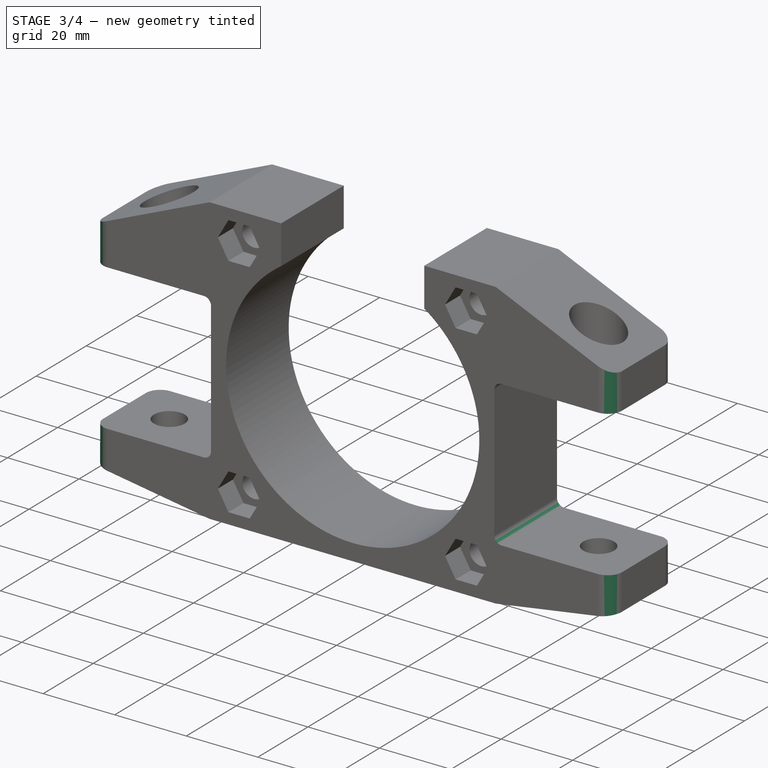
[diagram: stage 3 of 4 — iso view after this stage's code; geometry added in this stage tinted green]
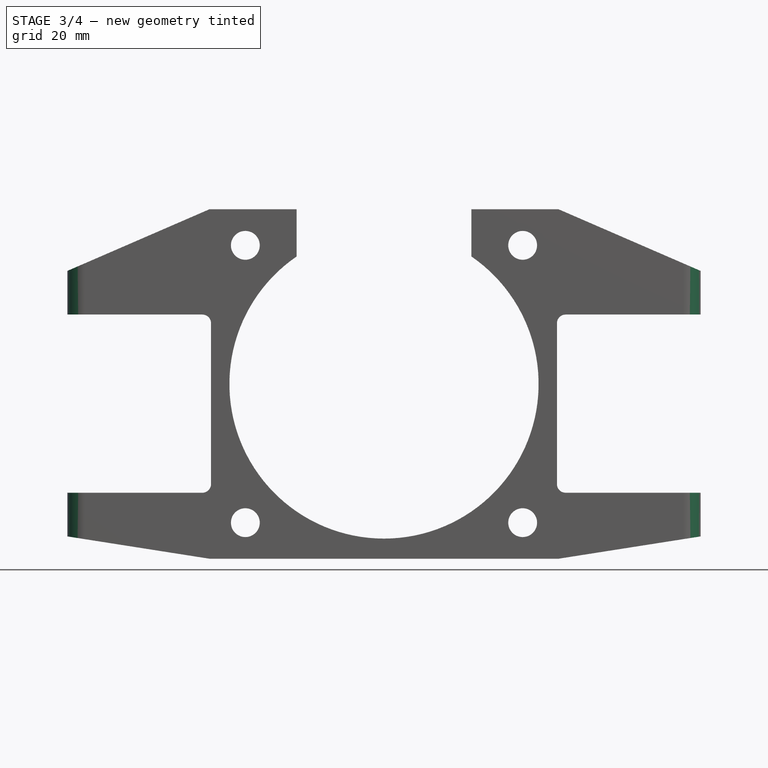
[diagram: stage 3 of 4 — front view after this stage's code; geometry added in this stage tinted green]
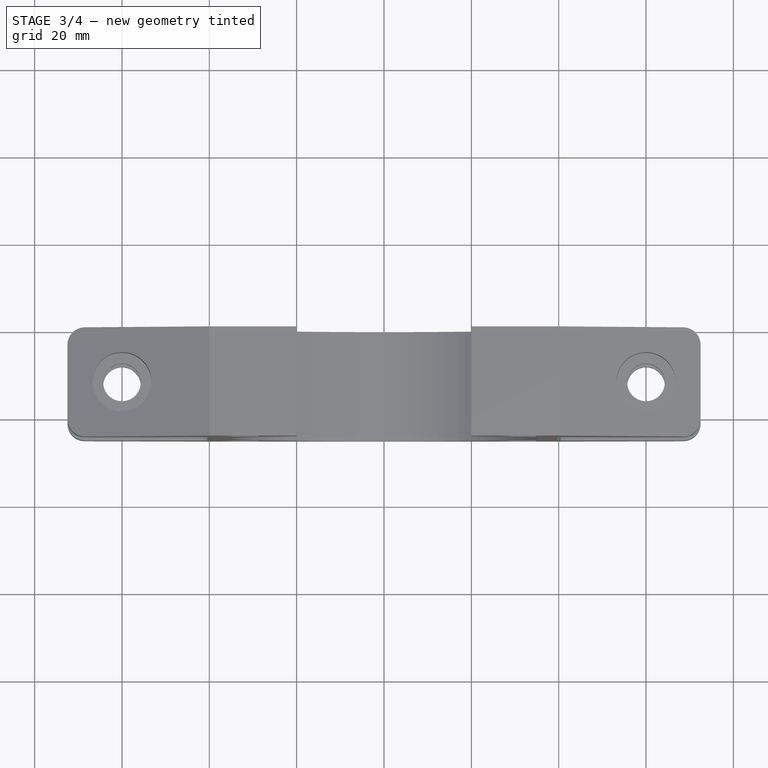
[diagram: stage 3 of 4 — top view after this stage's code; geometry added in this stage tinted green]
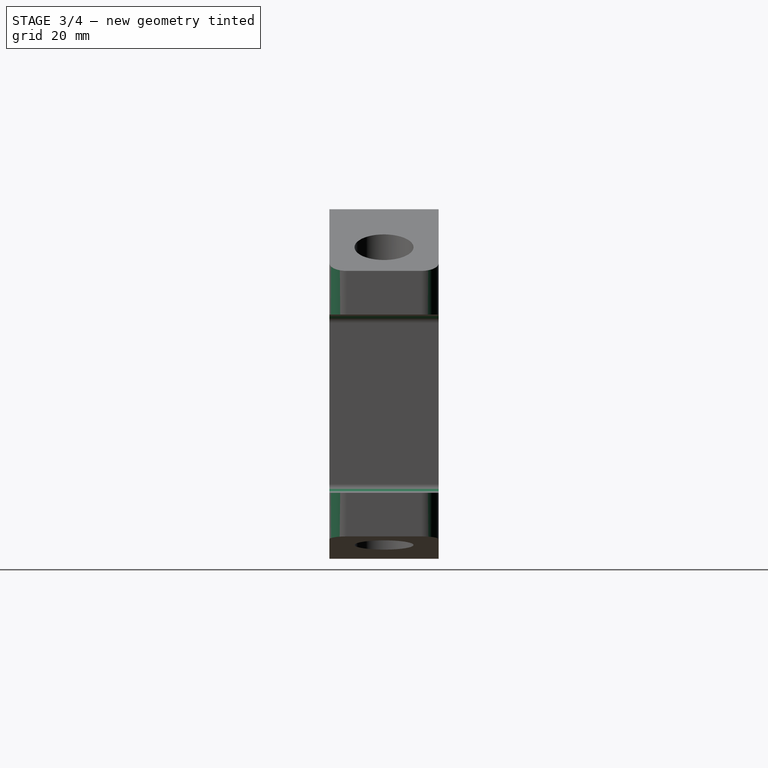
[diagram: stage 3 of 4 — right view after this stage's code; geometry added in this stage tinted green]
FEATURE [PartDesign::Fillet] Fillet
  Base = -> Pocket004 [Edge31,Edge9,Edge39,Edge17,Edge42,Edge47,Edge20,Edge25]
  BaseFeature = -> Pocket004
  Placement = pos=(0,0,0) rot=(1,0,0;1.5708rad)
  Radius = 4
  Refine = true
  SupportTransform = false
  Suppressed = false
  UseAllEdges = false
FEATURE [PartDesign::Fillet] Fillet001
  Base = -> Fillet [Edge116,Edge110,Edge85,Edge82]
  BaseFeature = -> Fillet
  Placement = pos=(0,0,0) rot=(1,0,0;1.5708rad)
  Radius = 2
  Refine = true
  SupportTransform = false
  Suppressed = false
  UseAllEdges = false
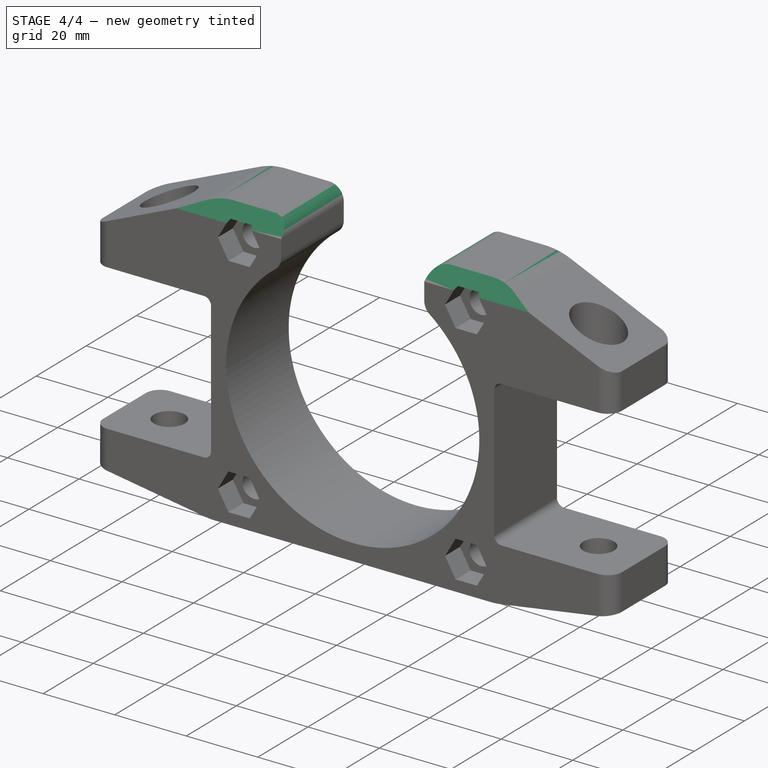
[diagram: stage 4 of 4 — iso view after this stage's code; geometry added in this stage tinted green]
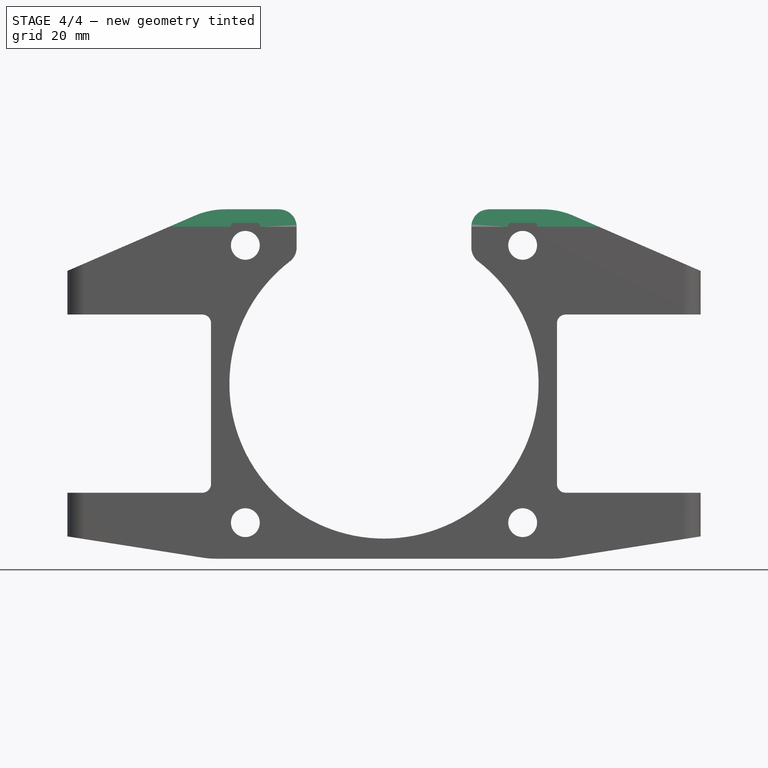
[diagram: stage 4 of 4 — front view after this stage's code; geometry added in this stage tinted green]
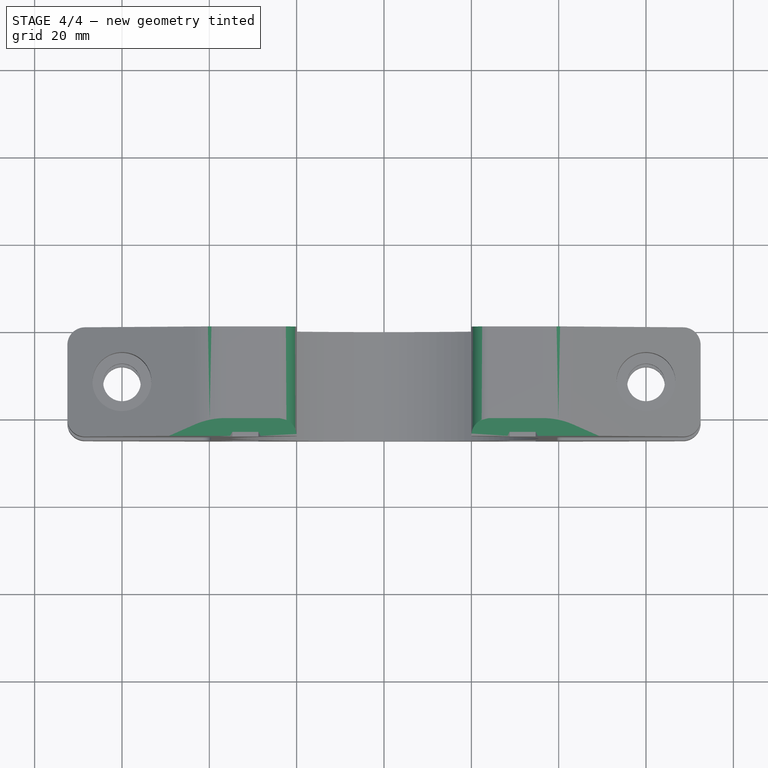
[diagram: stage 4 of 4 — top view after this stage's code; geometry added in this stage tinted green]
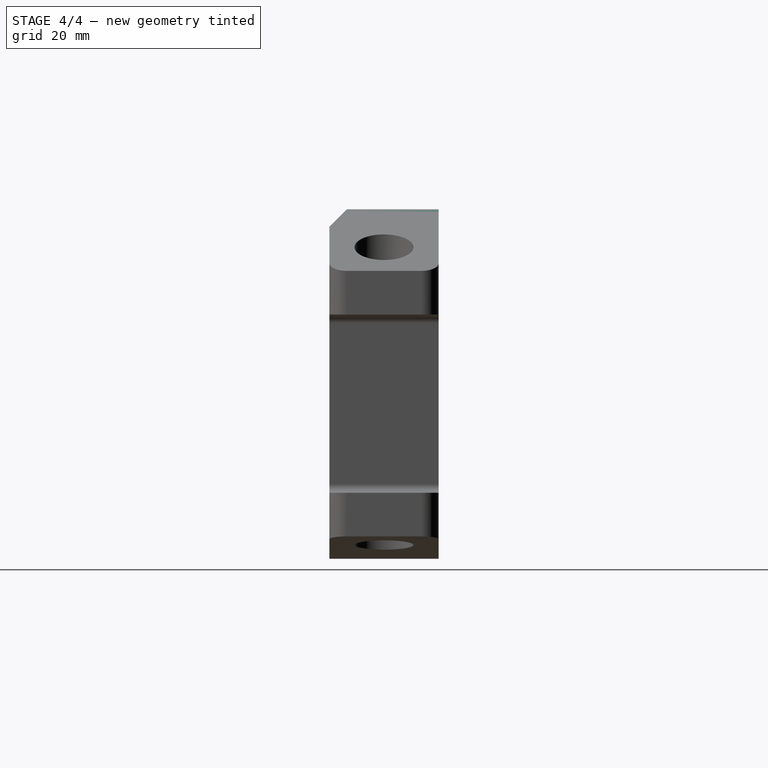
[diagram: stage 4 of 4 — right view after this stage's code; geometry added in this stage tinted green]
FEATURE [PartDesign::Fillet] Fillet002
  Base = -> Fillet001 [Edge41,Edge70,Edge64,Edge68]
  BaseFeature = -> Fillet001
  Placement = pos=(0,0,0) rot=(1,0,0;1.5708rad)
  Radius = 18
  Refine = true
  SupportTransform = false
  Suppressed = false
  UseAllEdges = false
FEATURE [PartDesign::Fillet] Fillet003
  Base = -> Fillet002 [Edge58,Edge54,Edge43,Edge50]
  BaseFeature = -> Fillet002
  Placement = pos=(0,0,0) rot=(1,0,0;1.5708rad)
  Radius = 4
  Refine = true
  SupportTransform = false
  Suppressed = false
  UseAllEdges = false
FEATURE [Sketcher::SketchObject] Sketch006
  ArcFitTolerance = 1e-06
  AttachmentSupport = -> [Fillet003]
  FullyConstrained = true
  MakeInternals = false
  MapMode = 5
  Placement = pos=(72.5,0,0) rot=(0.707107,0,0.707107;3.14159rad)
  sketch-geometry (4):
    g0: LineSegment StartX=40.5 StartY=25 StartZ=0 EndX=44.5 EndY=21 EndZ=0
    g1: LineSegment StartX=44.5 StartY=21 StartZ=0 EndX=44.5 EndY=25 EndZ=0
    g2: LineSegment StartX=44.5 StartY=25 StartZ=0 EndX=40.5 EndY=25 EndZ=0
    g3: LineSegment [constr] StartX=44.5 StartY=25 StartZ=0 EndX=41.4 EndY=25 EndZ=0
  constraints (12):
    c: Coincident(g0,g1)
    c: Vertical(g1)
    c: Coincident(g1,g2)
    c: Coincident(g2,g0)
    c: Horizontal(g2)
    c: DistanceX(g1) = 44.5
    c: DistanceY(g1) = 25
    c: Coincident(g3,g1)
    c: Horizontal(g3)
    c: DistanceX(g3,g1) = 3.1
    c: DistanceY(g1,g1) = 4
    c: DistanceX(g2,g2) = 4
FEATURE [PartDesign::Pocket] Pocket005
  BaseFeature = -> Fillet003
  Direction = (-1,0,2e-16)
  Length = 5
  Length2 = 5
  Placement = pos=(0,0,0) rot=(1,0,0;1.5708rad)
  Profile = -> Sketch006
  ReferenceAxis = -> Sketch006 [N_Axis]
  Refine = true
  Suppressed = false
  Type = 1
FEATURE [PartDesign::Body] Body  label="surge_motor_mount_side"
  AllowCompound = false
  Group = -> [Sketch,Pad,Sketch001,Pocket,Sketch002,Pocket001,Sketch003,Pocket002,Sketch004,Pocket003,Sketch005,Pocket004,Fillet,Fillet001,Fillet002,Fillet003,Sketch006,Pocket005]
  Origin = -> Origin
  Tip = -> Pocket005
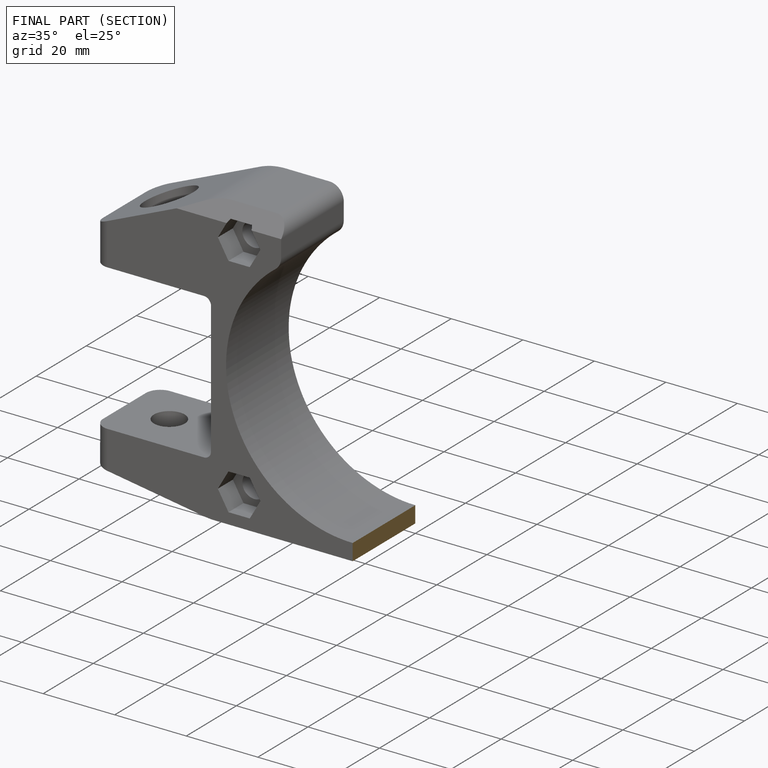
[diagram: finished part — half-section view (interior)]
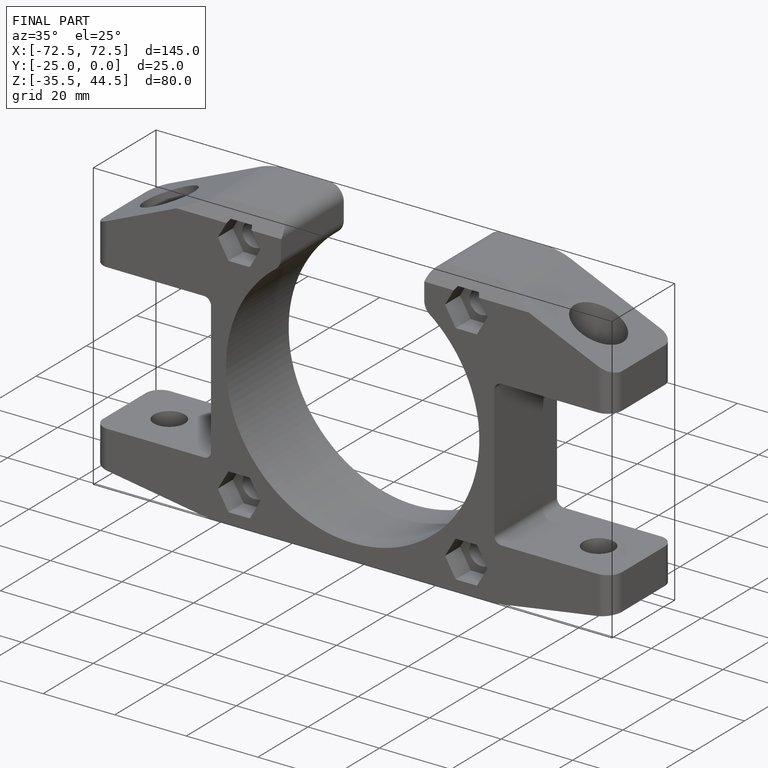
[diagram: finished part — iso view with bounding-box wireframe]
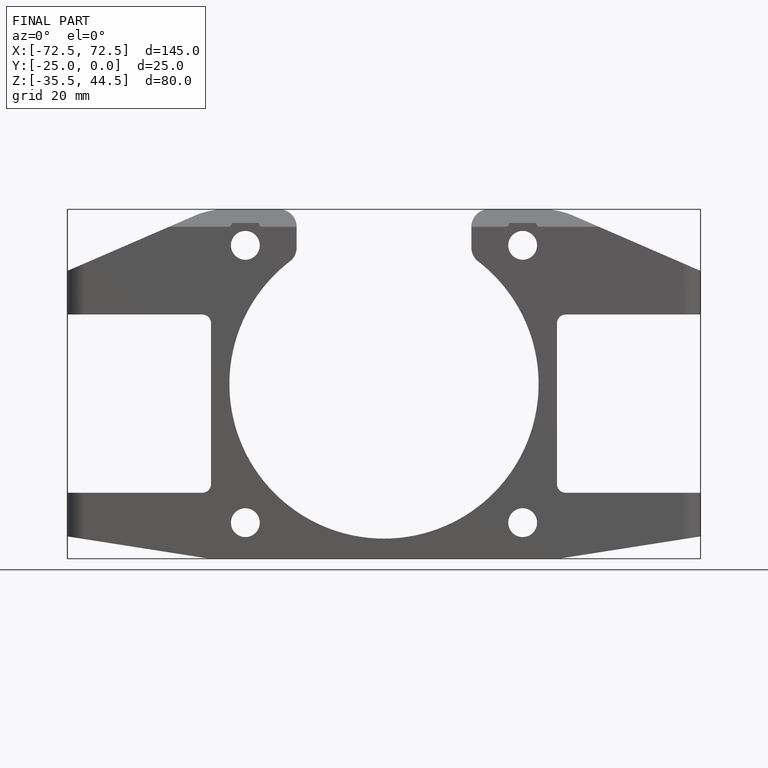
[diagram: finished part — front view with bounding-box wireframe]
